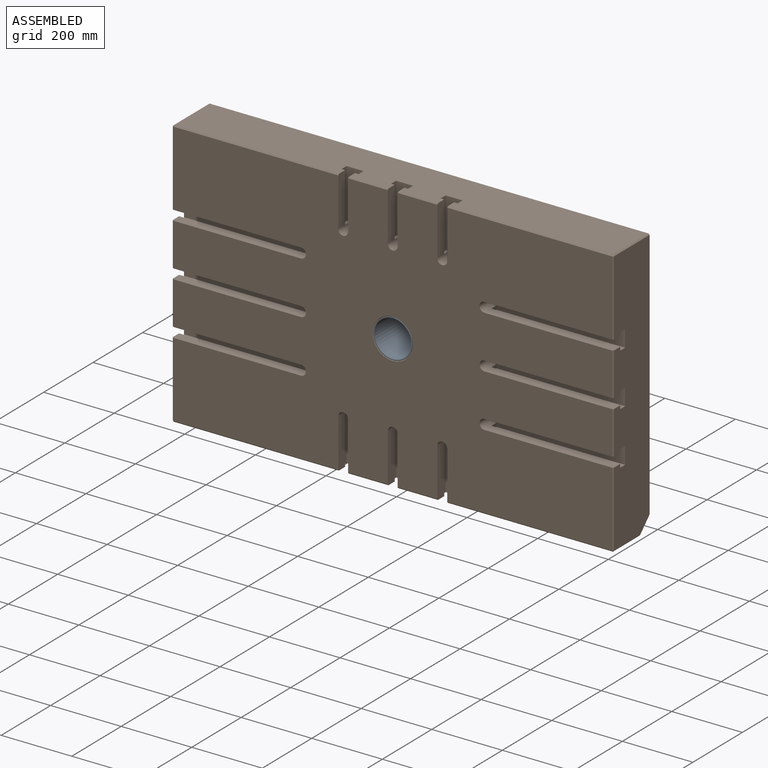
[diagram: assembled view]
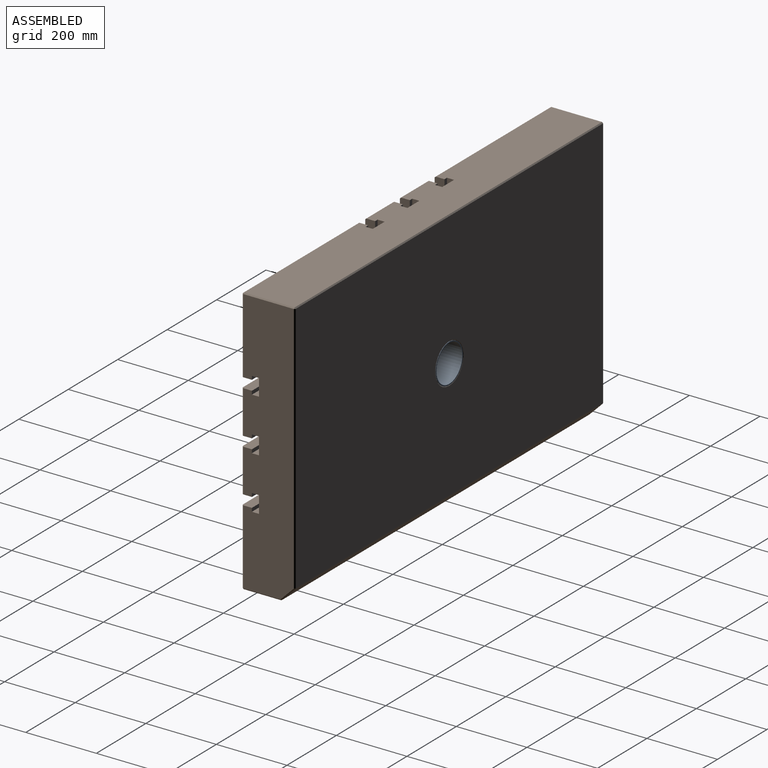
[diagram: assembled view, second angle]
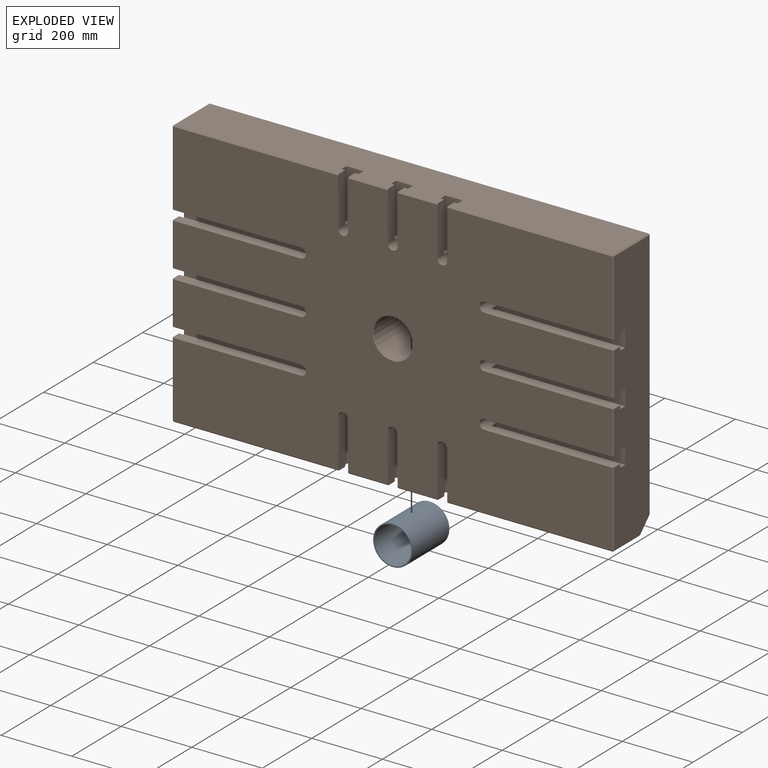
[diagram: exploded view]
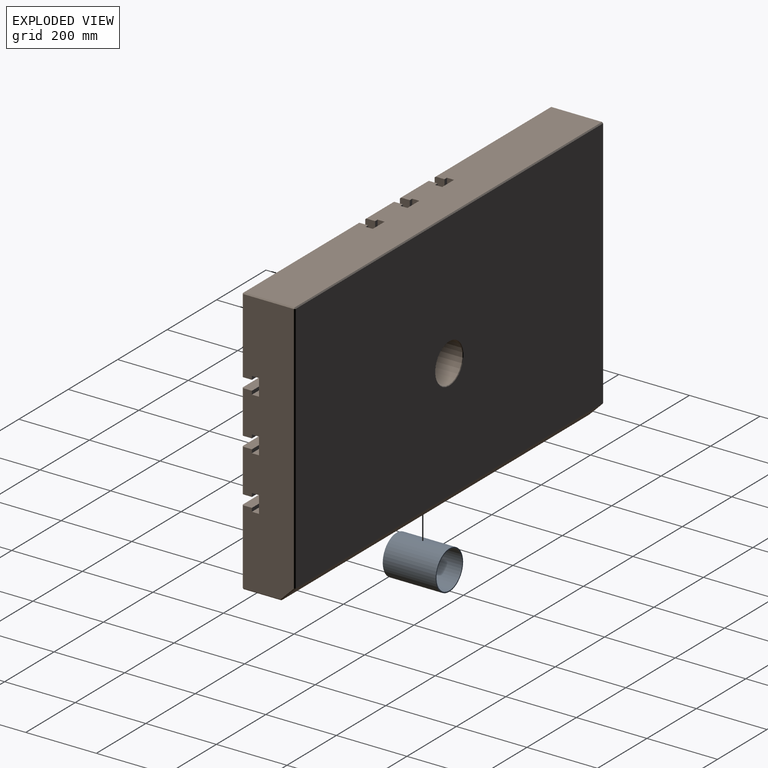
[diagram: exploded view, second angle]
ASSEMBLY  parts=2 mates=2
PART A: 4 faces, bbox 111x111x150 mm
  f0: cylinder r=52.32mm len=150mm, axis (0,0,-1), area 49310.4mm2, adj f2,f3
  f1: cylinder r=55.5mm len=150mm, axis (0,0,-1), area 52307.5mm2, adj f2,f3
  f2: plane 111x111mm, normal (0,0,1), area 1077.2mm2, adj f0,f1
  f3: plane 111x111mm, normal (0,0,-1), area 1077.2mm2, adj f0,f1
PART B: 167 faces, bbox 1250x150x760 mm
  f0: plane 20x10mm, normal (-1,0,0), area 200mm2, adj f102,f103,f104,f125
  f1: plane 20x10mm, normal (-1,0,0), area 200mm2, adj f110,f111,f112,f124
  f2: plane 20x10mm, normal (-1,0,0), area 200mm2, adj f119,f120,f121,f123
  f3: plane 1244x754mm, normal (0,-1,0), area 840187.8mm2, adj f21,f27,f29,f35,f37,f43,f45,f46
  f4: plane 754x144mm, normal (-1,0,0), area 102864.8mm2, adj f99,f100,f101,f102,f103,f104,f105,f107
  f5: plane 20x10mm, normal (1,0,0), area 200mm2, adj f75,f76,f77,f98
  f6: plane 20x10mm, normal (1,0,0), area 200mm2, adj f83,f84,f85,f97
  f7: plane 20x10mm, normal (1,0,0), area 200mm2, adj f91,f92,f93,f96
  f8: plane 754x144mm, normal (1,0,0), area 102864.8mm2, adj f72,f73,f74,f75,f76,f77,f78,f80
  f9: plane 20x10mm, normal (0,0,1), area 200mm2, adj f51,f52,f53,f71
  f10: plane 20x10mm, normal (0,0,1), area 200mm2, adj f49,f50,f51,f71
  f11: plane 20x10mm, normal (0,0,1), area 200mm2, adj f55,f56,f57,f70
  f12: plane 20x10mm, normal (0,0,1), area 200mm2, adj f55,f60,f61,f70
  f13: plane 20x10mm, normal (0,0,1), area 200mm2, adj f62,f67,f68,f69
  f14: plane 20x10mm, normal (0,0,1), area 200mm2, adj f65,f66,f67,f69
  f15: plane 20x10mm, normal (0,0,-1), area 200mm2, adj f24,f25,f26,f47
  f16: plane 20x10mm, normal (0,0,-1), area 200mm2, adj f32,f33,f34,f46
  f17: plane 20x10mm, normal (0,0,-1), area 200mm2, adj f40,f41,f42,f45
  f18: plane 1244x105.76mm, normal (0,0,-1), area 126582.2mm2, adj f21,f22,f23,f24,f25,f26,f27,f29
  f19: plane 1244x144mm, normal (0,0,1), area 174156mm2, adj f48,f49,f50,f51,f52,f53,f54,f55
  f20: plane 1244x715.76mm, normal (0,1,0), area 880140.4mm2, adj f127,f147,f148,f152,f153
  f21: plane 140x28mm, normal (1,0,0), area 3915.5mm2, adj f3,f18,f22,f47,f161
  f22: plane 140x10mm, normal (0,1,0), area 1400mm2, adj f18,f21,f23,f28
  f23: plane 140x20mm, normal (1,0,0), area 2800mm2, adj f18,f22,f24,f28
  f24: plane 154x48mm, normal (0,-1,0), area 7027.9mm2, adj f15,f18,f23,f25,f28,f47
  f25: plane 140x20mm, normal (-1,0,0), area 2800mm2, adj f15,f18,f24,f26
  f26: plane 140x10mm, normal (0,1,0), area 1400mm2, adj f15,f18,f25,f27
  f27: plane 140x28mm, normal (-1,0,0), area 3915.5mm2, adj f3,f18,f26,f47,f162
  f28: plane 20x10mm, normal (0,0,-1), area 200mm2, adj f22,f23,f24,f47
  f29: plane 140x28mm, normal (1,0,0), area 3915.5mm2, adj f3,f18,f30,f46,f131
  f30: plane 140x10mm, normal (0,1,0), area 1400mm2, adj f18,f29,f31,f36
  f31: plane 140x20mm, normal (1,0,0), area 2800mm2, adj f18,f30,f32,f36
  f32: plane 154x48mm, normal (0,-1,0), area 7027.9mm2, adj f16,f18,f31,f33,f36,f46
  f33: plane 140x20mm, normal (-1,0,0), area 2800mm2, adj f16,f18,f32,f34
  f34: plane 140x10mm, normal (0,1,0), area 1400mm2, adj f16,f18,f33,f35
  f35: plane 140x28mm, normal (-1,0,0), area 3915.5mm2, adj f3,f18,f34,f46,f161
  f36: plane 20x10mm, normal (0,0,-1), area 200mm2, adj f30,f31,f32,f46
  f37: plane 140x28mm, normal (1,0,0), area 3915.5mm2, adj f3,f18,f38,f45,f162
  f38: plane 140x10mm, normal (0,1,0), area 1400mm2, adj f18,f37,f39,f44
  f39: plane 140x20mm, normal (1,0,0), area 2800mm2, adj f18,f38,f40,f44
  f40: plane 154x48mm, normal (0,-1,0), area 7027.9mm2, adj f17,f18,f39,f41,f44,f45
  f41: plane 140x20mm, normal (-1,0,0), area 2800mm2, adj f17,f18,f40,f42
  f42: plane 140x10mm, normal (0,1,0), area 1400mm2, adj f17,f18,f41,f43
  f43: plane 140x28mm, normal (-1,0,0), area 3915.5mm2, adj f3,f18,f42,f45,f134
  f44: plane 20x10mm, normal (0,0,-1), area 200mm2, adj f38,f39,f40,f45
  f45: cylinder r=14mm len=48mm, axis (0,-1,0), area 2111.2mm2, adj f3,f17,f37,f40,f43,f44
  f46: cylinder r=14mm len=48mm, axis (0,-1,0), area 2111.2mm2, adj f3,f16,f29,f32,f35,f36
  f47: cylinder r=14mm len=48mm, axis (0,-1,0), area 2111.2mm2, adj f3,f15,f21,f24,f27,f28
  f48: plane 140x28mm, normal (-1,0,0), area 3915.5mm2, adj f3,f19,f49,f71,f166
  f49: plane 140x10mm, normal (0,1,0), area 1400mm2, adj f10,f19,f48,f50
  f50: plane 140x20mm, normal (-1,0,0), area 2800mm2, adj f10,f19,f49,f51
  f51: plane 154x48mm, normal (0,-1,0), area 7027.9mm2, adj f9,f10,f19,f50,f52,f71
  f52: plane 140x20mm, normal (1,0,0), area 2800mm2, adj f9,f19,f51,f53
  f53: plane 140x10mm, normal (0,1,0), area 1400mm2, adj f9,f19,f52,f54
  f54: plane 140x28mm, normal (1,0,0), area 3915.5mm2, adj f3,f19,f53,f71,f138
  f55: plane 154x48mm, normal (0,-1,0), area 7027.9mm2, adj f11,f12,f19,f56,f61,f70
  f56: plane 140x20mm, normal (1,0,0), area 2800mm2, adj f11,f19,f55,f57
  f57: plane 140x10mm, normal (0,1,0), area 1400mm2, adj f11,f19,f56,f58
  f58: plane 140x28mm, normal (1,0,0), area 3915.5mm2, adj f3,f19,f57,f70,f166
  f59: plane 140x28mm, normal (-1,0,0), area 3915.5mm2, adj f3,f19,f60,f70,f165
  f60: plane 140x10mm, normal (0,1,0), area 1400mm2, adj f12,f19,f59,f61
  f61: plane 140x20mm, normal (-1,0,0), area 2800mm2, adj f12,f19,f55,f60
  f62: plane 140x10mm, normal (0,1,0), area 1400mm2, adj f13,f19,f63,f68
  f63: plane 140x28mm, normal (1,0,0), area 3915.5mm2, adj f3,f19,f62,f69,f165
  f64: plane 140x28mm, normal (-1,0,0), area 3915.5mm2, adj f3,f19,f65,f69,f155
  f65: plane 140x10mm, normal (0,1,0), area 1400mm2, adj f14,f19,f64,f66
  f66: plane 140x20mm, normal (-1,0,0), area 2800mm2, adj f14,f19,f65,f67
  f67: plane 154x48mm, normal (0,-1,0), area 7027.9mm2, adj f13,f14,f19,f66,f68,f69
  f68: plane 140x20mm, normal (1,0,0), area 2800mm2, adj f13,f19,f62,f67
  f69: cylinder r=14mm len=48mm, axis (0,-1,0), area 2111.2mm2, adj f3,f13,f14,f63,f64,f67
  f70: cylinder r=14mm len=48mm, axis (0,-1,0), area 2111.2mm2, adj f3,f11,f12,f55,f58,f59
  f71: cylinder r=14mm len=48mm, axis (0,-1,0), area 2111.2mm2, adj f3,f9,f10,f48,f51,f54
  f72: plane 365x28mm, normal (0,0,1), area 10215.5mm2, adj f3,f8,f73,f98,f160
  f73: plane 365x10mm, normal (0,1,0), area 3650mm2, adj f8,f72,f74,f79
  f74: plane 365x20mm, normal (0,0,1), area 7300mm2, adj f8,f73,f75,f79
  f75: plane 379x48mm, normal (0,-1,0), area 17827.9mm2, adj f5,f8,f74,f76,f79,f98
  f76: plane 365x20mm, normal (0,0,-1), area 7300mm2, adj f5,f8,f75,f77
  f77: plane 365x10mm, normal (0,1,0), area 3650mm2, adj f5,f8,f76,f78
  f78: plane 365x28mm, normal (0,0,-1), area 10215.5mm2, adj f3,f8,f77,f98,f159
  f79: plane 20x10mm, normal (1,0,0), area 200mm2, adj f73,f74,f75,f98
  f80: plane 365x28mm, normal (0,0,1), area 10215.5mm2, adj f3,f8,f81,f97,f159
  f81: plane 365x10mm, normal (0,1,0), area 3650mm2, adj f8,f80,f82,f87
  f82: plane 365x20mm, normal (0,0,1), area 7300mm2, adj f8,f81,f83,f87
  f83: plane 379x48mm, normal (0,-1,0), area 17827.9mm2, adj f6,f8,f82,f84,f87,f97
  f84: plane 365x20mm, normal (0,0,-1), area 7300mm2, adj f6,f8,f83,f85
  f85: plane 365x10mm, normal (0,1,0), area 3650mm2, adj f6,f8,f84,f86
  f86: plane 365x28mm, normal (0,0,-1), area 10215.5mm2, adj f3,f8,f85,f97,f158
  f87: plane 20x10mm, normal (1,0,0), area 200mm2, adj f81,f82,f83,f97
  f88: plane 365x28mm, normal (0,0,1), area 10215.5mm2, adj f3,f8,f89,f96,f135
  f89: plane 365x10mm, normal (0,1,0), area 3650mm2, adj f8,f88,f90,f95
  f90: plane 365x20mm, normal (0,0,1), area 7300mm2, adj f8,f89,f91,f95
  f91: plane 379x48mm, normal (0,-1,0), area 17827.9mm2, adj f7,f8,f90,f92,f95,f96
  f92: plane 365x20mm, normal (0,0,-1), area 7300mm2, adj f7,f8,f91,f93
  f93: plane 365x10mm, normal (0,1,0), area 3650mm2, adj f7,f8,f92,f94
  f94: plane 365x28mm, normal (0,0,-1), area 10215.5mm2, adj f3,f8,f93,f96,f160
  f95: plane 20x10mm, normal (1,0,0), area 200mm2, adj f89,f90,f91,f96
  f96: cylinder r=14mm len=48mm, axis (0,-1,0), area 2111.2mm2, adj f3,f7,f88,f91,f94,f95
  f97: cylinder r=14mm len=48mm, axis (0,-1,0), area 2111.2mm2, adj f3,f6,f80,f83,f86,f87
  f98: cylinder r=14mm len=48mm, axis (0,-1,0), area 2111.2mm2, adj f3,f5,f72,f75,f78,f79
  f99: plane 365x28mm, normal (0,0,-1), area 10215.5mm2, adj f3,f4,f100,f125,f164
  f100: plane 365x10mm, normal (0,1,0), area 3650mm2, adj f4,f99,f101,f106
  f101: plane 365x20mm, normal (0,0,-1), area 7300mm2, adj f4,f100,f102,f106
  f102: plane 379x48mm, normal (0,-1,0), area 17827.9mm2, adj f0,f4,f101,f103,f106,f125
  f103: plane 365x20mm, normal (0,0,1), area 7300mm2, adj f0,f4,f102,f104
  f104: plane 365x10mm, normal (0,1,0), area 3650mm2, adj f0,f4,f103,f105
  f105: plane 365x28mm, normal (0,0,1), area 10215.5mm2, adj f3,f4,f104,f125,f163
  f106: plane 20x10mm, normal (-1,0,0), area 200mm2, adj f100,f101,f102,f125
  f107: plane 365x28mm, normal (0,0,-1), area 10215.5mm2, adj f3,f4,f108,f124,f139
  f108: plane 365x10mm, normal (0,1,0), area 3650mm2, adj f4,f107,f109,f114
  f109: plane 365x20mm, normal (0,0,-1), area 7300mm2, adj f4,f108,f110,f114
  f110: plane 379x48mm, normal (0,-1,0), area 17827.9mm2, adj f1,f4,f109,f111,f114,f124
  f111: plane 365x20mm, normal (0,0,1), area 7300mm2, adj f1,f4,f110,f112
  f112: plane 365x10mm, normal (0,1,0), area 3650mm2, adj f1,f4,f111,f113
  f113: plane 365x28mm, normal (0,0,1), area 10215.5mm2, adj f3,f4,f112,f124,f164
  f114: plane 20x10mm, normal (-1,0,0), area 200mm2, adj f108,f109,f110,f124
  f115: plane 365x28mm, normal (0,0,1), area 10215.5mm2, adj f3,f4,f121,f123,f130
  f116: plane 365x28mm, normal (0,0,-1), area 10215.5mm2, adj f3,f4,f117,f123,f163
  f117: plane 365x10mm, normal (0,1,0), area 3650mm2, adj f4,f116,f118,f122
  f118: plane 365x20mm, normal (0,0,-1), area 7300mm2, adj f4,f117,f119,f122
  f119: plane 379x48mm, normal (0,-1,0), area 17827.9mm2, adj f2,f4,f118,f120,f122,f123
  f120: plane 365x20mm, normal (0,0,1), area 7300mm2, adj f2,f4,f119,f121
  f121: plane 365x10mm, normal (0,1,0), area 3650mm2, adj f2,f4,f115,f120
  f122: plane 20x10mm, normal (-1,0,0), area 200mm2, adj f117,f118,f119,f123
  f123: cylinder r=14mm len=48mm, axis (0,-1,0), area 2111.2mm2, adj f2,f3,f115,f116,f119,f122
  f124: cylinder r=14mm len=48mm, axis (0,-1,0), area 2111.2mm2, adj f1,f3,f107,f110,f113,f114
  f125: cylinder r=14mm len=48mm, axis (0,-1,0), area 2111.2mm2, adj f0,f3,f99,f102,f105,f106
  f126: cylinder r=55.57mm len=146.83mm, axis (0,-1,0), area 51260.3mm2, adj f127,f128
  f127: cone r=57.15mm half-angle=45deg, axis (0,1,0), area 795mm2, adj f20,f126
  f128: cone r=55.57mm half-angle=45deg, axis (0,-1,0), area 795mm2, adj f3,f126
  f129: plane 1244x38.24mm, normal (0,0.71,-0.71), area 67279.6mm2, adj f140,f141,f148,f149
  f130: plane 213x3mm, normal (-0.71,-0.71,0), area 903.7mm2, adj f3,f4,f115,f132
  f131: plane 467.56x3mm, normal (0,-0.71,-0.71), area 1983.7mm2, adj f3,f18,f29,f132
  f132: plane 3x3mm, normal (-0.58,-0.58,-0.58), area 7.8mm2, adj f130,f131,f133
  f133: plane 105.76x3mm, normal (-0.71,0,-0.71), area 448.7mm2, adj f4,f18,f132,f136
  f134: plane 467.56x3mm, normal (0,-0.71,-0.71), area 1983.7mm2, adj f3,f18,f43,f137
  f135: plane 213x3mm, normal (0.71,-0.71,0), area 903.7mm2, adj f3,f8,f88,f137
  f136: plane 3x3mm, normal (-0.68,0.28,-0.68), area 4.7mm2, adj f133,f140,f141
  f137: plane 3x3mm, normal (0.58,-0.58,-0.58), area 7.8mm2, adj f134,f135,f142
  f138: plane 467.56x3mm, normal (0,-0.71,0.71), area 1983.7mm2, adj f3,f19,f54,f143
  f139: plane 213x3mm, normal (-0.71,-0.71,0), area 903.7mm2, adj f3,f4,f107,f143
  f140: plane 40.36x40.36mm, normal (-0.71,0.5,-0.5), area 229.5mm2, adj f4,f129,f136,f144
  f141: plane 1244x2.12mm, normal (0,0.38,-0.92), area 2856.4mm2, adj f18,f129,f136,f145
  f142: plane 105.76x3mm, normal (0.71,0,-0.71), area 448.7mm2, adj f8,f18,f137,f145
  f143: plane 3x3mm, normal (-0.58,-0.58,0.58), area 7.8mm2, adj f138,f139,f146
  f144: plane 3x3mm, normal (-0.68,0.68,-0.28), area 4.7mm2, adj f140,f147,f148
  f145: plane 3x3mm, normal (0.68,0.28,-0.68), area 4.7mm2, adj f141,f142,f149
  f146: plane 144x3mm, normal (-0.71,0,0.71), area 610.9mm2, adj f4,f19,f143,f150
  f147: plane 715.76x3mm, normal (-0.71,0.71,0), area 3036.7mm2, adj f4,f20,f144,f150
  f148: plane 1244x2.12mm, normal (0,0.92,-0.38), area 2856.3mm2, adj f20,f129,f144,f151
  f149: plane 40.36x40.36mm, normal (0.71,0.5,-0.5), area 229.5mm2, adj f8,f129,f145,f151
  f150: plane 3x3mm, normal (-0.58,0.58,0.58), area 7.8mm2, adj f146,f147,f152
  f151: plane 3x3mm, normal (0.68,0.68,-0.28), area 4.7mm2, adj f148,f149,f153
  f152: plane 1244x3mm, normal (0,0.71,0.71), area 5277.8mm2, adj f19,f20,f150,f154
  f153: plane 715.76x3mm, normal (0.71,0.71,0), area 3036.7mm2, adj f8,f20,f151,f154
  f154: plane 3x3mm, normal (0.58,0.58,0.58), area 7.8mm2, adj f152,f153,f156
  f155: plane 467.56x3mm, normal (0,-0.71,0.71), area 1983.7mm2, adj f3,f19,f64,f157
  f156: plane 144x3mm, normal (0.71,0,0.71), area 610.9mm2, adj f8,f19,f154,f157
  f157: plane 3x3mm, normal (0.58,-0.58,0.58), area 7.8mm2, adj f155,f156,f158
  f158: plane 213x3mm, normal (0.71,-0.71,0), area 903.7mm2, adj f3,f8,f86,f157
  f159: plane 122x3mm, normal (0.71,-0.71,0), area 517.6mm2, adj f3,f8,f78,f80
  f160: plane 122x3mm, normal (0.71,-0.71,0), area 517.6mm2, adj f3,f8,f72,f94
  f161: plane 112.44x3mm, normal (0,-0.71,-0.71), area 477mm2, adj f3,f18,f21,f35
  f162: plane 112.44x3mm, normal (0,-0.71,-0.71), area 477mm2, adj f3,f18,f27,f37
  f163: plane 122x3mm, normal (-0.71,-0.71,0), area 517.6mm2, adj f3,f4,f105,f116
  f164: plane 122x3mm, normal (-0.71,-0.71,0), area 517.6mm2, adj f3,f4,f99,f113
  f165: plane 112.44x3mm, normal (0,-0.71,0.71), area 477mm2, adj f3,f19,f59,f63
  f166: plane 112.44x3mm, normal (0,-0.71,0.71), area 477mm2, adj f3,f19,f48,f58
PLACE A rot(axis=(-1,0,0),90deg) t=(-358.3,-360.59,-108.26)mm
PLACE B t=(-358.3,-210.59,-108.26)mm
MATE fastened A.f0 <-> B.f126  axis (0,-1,0) through (-358.3,-360.59,-108.26)mm
MATE slider A.f0 <-> B.f126  axis (0,1,0) through (-358.3,-210.59,-108.26)mm
